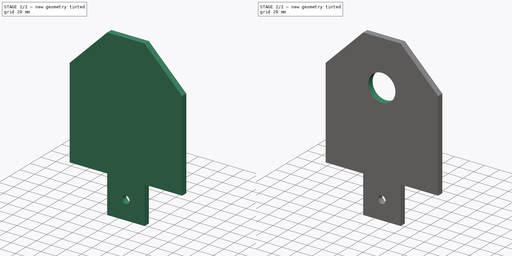
[diagram: build sequence overview — one tinted view per stage of 2, left to right]
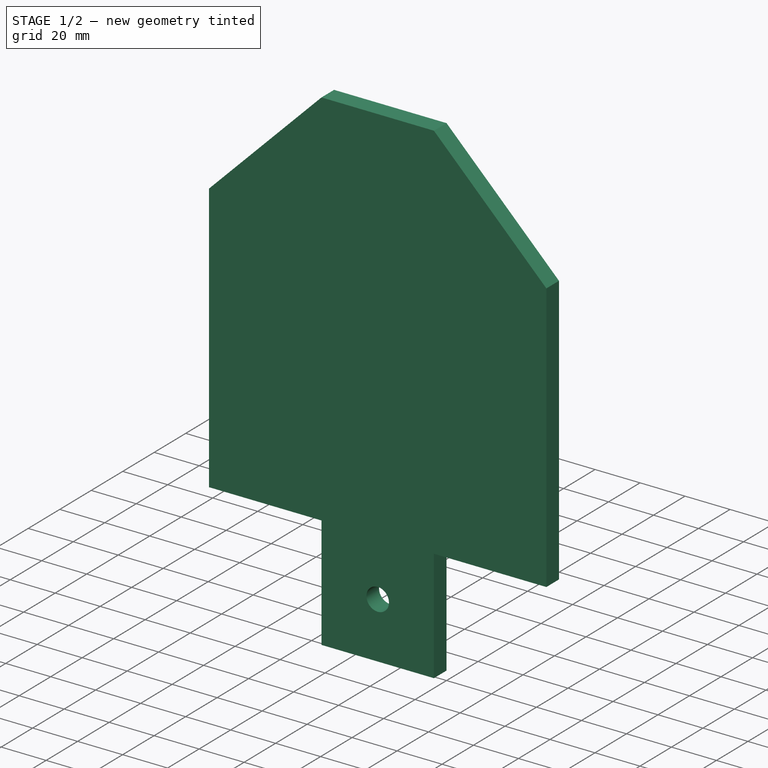
[diagram: stage 1 of 2 — iso view after this stage's code; geometry added in this stage tinted green]
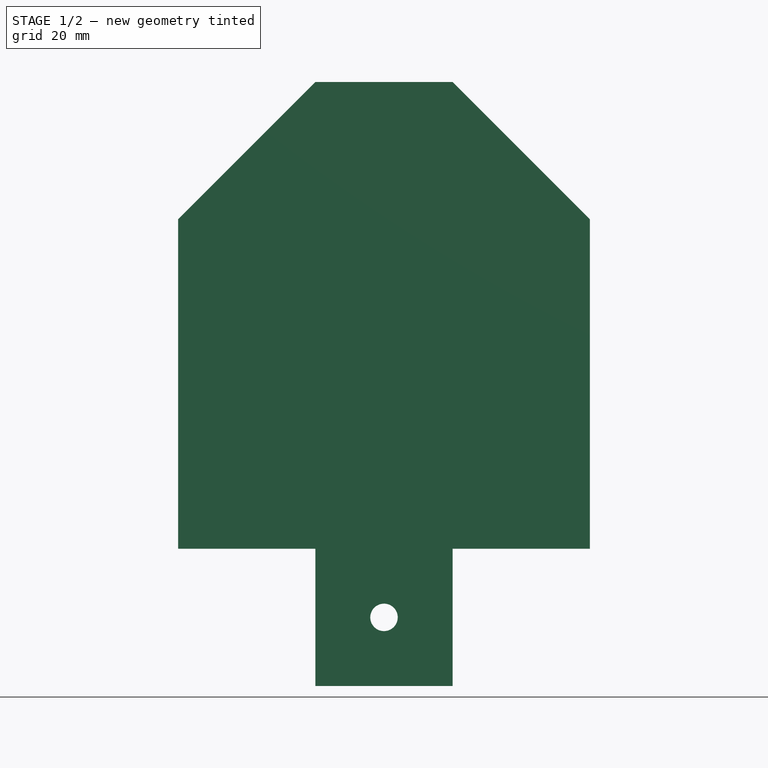
[diagram: stage 1 of 2 — front view after this stage's code; geometry added in this stage tinted green]
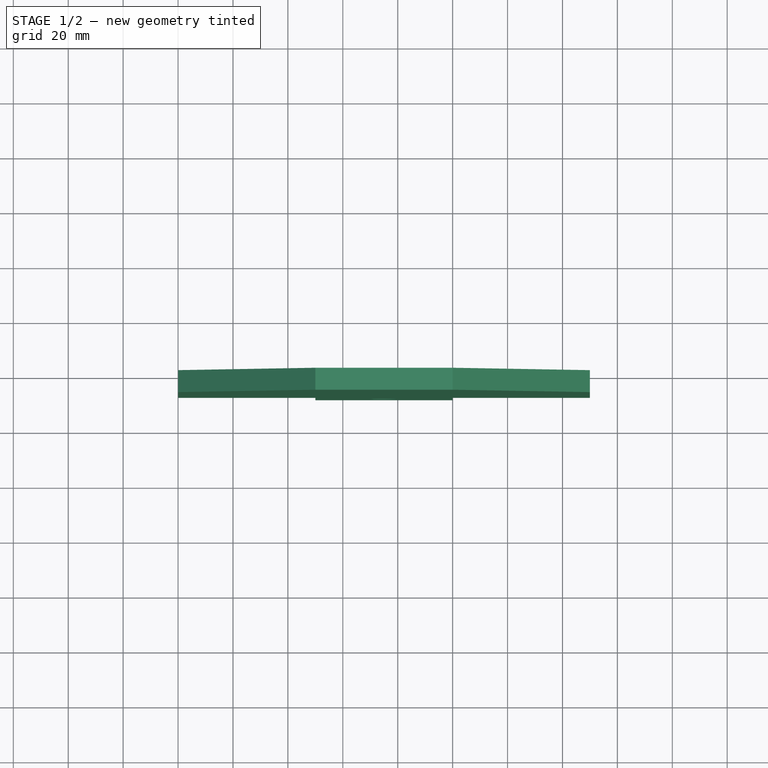
[diagram: stage 1 of 2 — top view after this stage's code; geometry added in this stage tinted green]
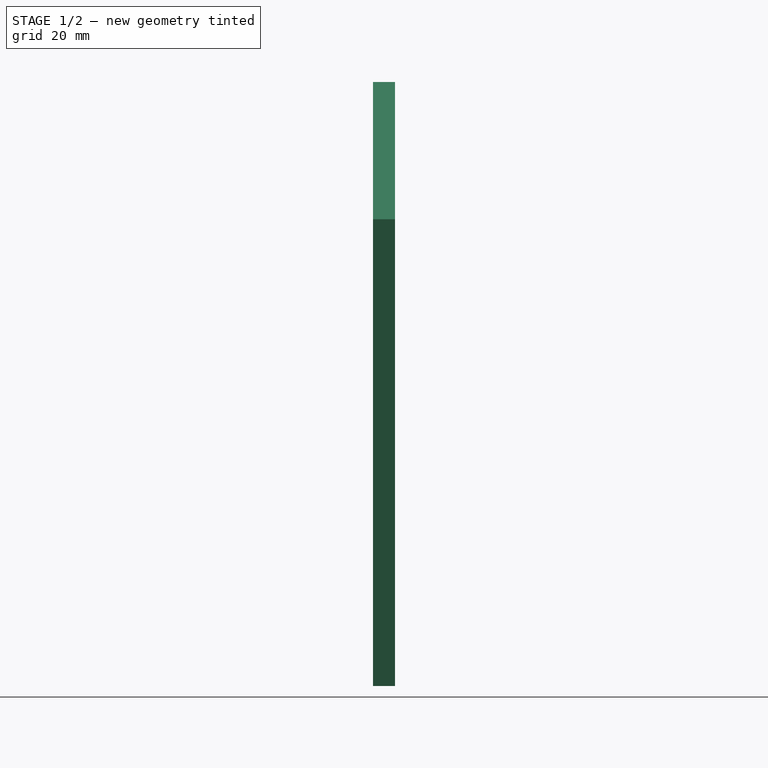
[diagram: stage 1 of 2 — right view after this stage's code; geometry added in this stage tinted green]
FCSTD DOCUMENT  (FreeCAD 0.21R33771 (Git))
Label: FlangiaSupportoMandrino
License: All rights reserved
LicenseURL: http://en.wikipedia.org/wiki/All_rights_reserved
objects: Sketcher::SketchObject×2, PartDesign::Pad×1, PartDesign::CoordinateSystem×1, PartDesign::Pocket×1, PartDesign::Body×1
note: 8 computed .brp shape members not serialized (recipe doc carries the construction recipe); baked Part::Feature solids carry a one-line shape summary decoded from their .brp

FEATURE [Sketcher::SketchObject] Sketch
  FullyConstrained = false
  MapMode = 5
  Placement = pos=(0,0,0) rot=(1,0,0;1.5708rad)
  Support = -> [XZ_Plane]
  sketch-geometry (13):
    g0: LineSegment StartX=0 StartY=0 StartZ=0 EndX=50 EndY=0 EndZ=0
    g1: LineSegment StartX=150 StartY=0 StartZ=0 EndX=150 EndY=120 EndZ=0
    g2: LineSegment StartX=100 StartY=170 StartZ=0 EndX=50 EndY=170 EndZ=0
    g3: LineSegment StartX=0 StartY=120 StartZ=0 EndX=0 EndY=0 EndZ=0
    g4: LineSegment StartX=50 StartY=170 StartZ=0 EndX=0 EndY=120 EndZ=0
    g5: LineSegment StartX=100 StartY=170 StartZ=0 EndX=150 EndY=120 EndZ=0
    g6: LineSegment StartX=50 StartY=0 StartZ=0 EndX=50 EndY=-50 EndZ=0
    g7: LineSegment StartX=50 StartY=-50 StartZ=0 EndX=100 EndY=-50 EndZ=0
    g8: LineSegment StartX=100 StartY=-50 StartZ=0 EndX=100 EndY=0 EndZ=0
    g9: LineSegment StartX=100 StartY=0 StartZ=0 EndX=150 EndY=0 EndZ=0
    g10: LineSegment StartX=57.3539 StartY=-25 StartZ=0 EndX=90.0763 EndY=-25 EndZ=0
    g11: LineSegment StartX=75 StartY=-16.1455 StartZ=0 EndX=75 EndY=-44.4932 EndZ=0
    g12: Circle CenterX=75 CenterY=-25 CenterZ=0 NormalX=0 NormalY=0 NormalZ=1 AngleXU=0 Radius=5
  constraints (36):
    c: Coincident(g9,g1)
    c: Coincident(g3,g0)
    c: Horizontal(g0)
    c: Horizontal(g2)
    c: Vertical(g1)
    c: Vertical(g3)
    c: Coincident(g0,g-1)
    c: DistanceX(g0,g9) = 150
    c: Coincident(g2,g5)
    c: Coincident(g1,g5)
    c: Coincident(g2,g4)
    c: Coincident(g3,g4)
    c: Angle(g-2,g4) = 2.35619
    c: Angle(g-2,g5) = 0.785398
    c: DistanceY(g1,g1) = 120
    c: Equal(g1,g3)
    c: DistanceY(g1,g2) = 50
    c: Vertical(g6)
    c: Coincident(g7,g6)
    c: Horizontal(g7)
    c: Coincident(g8,g7)
    c: Vertical(g8)
    c: Coincident(g0,g6)
    c: Coincident(g9,g8)
    c: DistanceX(g7,g7) = 50
    c: DistanceY(g8,g8) = 50
    c: Horizontal(g9)
    c: Equal(g8,g6)
    c: DistanceX(g0,g0) = 50
    c: Horizontal(g10)
    c: Vertical(g11)
    c: DistanceY(g10,g0) = 25
    c: DistanceX(g0,g11) = 75
    c: PointOnObject(g12,g11)
    c: PointOnObject(g12,g10)
    c: Radius(g12) = 5
FEATURE [PartDesign::Pad] Pad
  Direction = (0,-1,-2e-16)
  Length = 8
  Length2 = 100
  Placement = pos=(0,0,0) rot=(1,0,0;1.5708rad)
  Profile = -> Sketch
  Type = 0
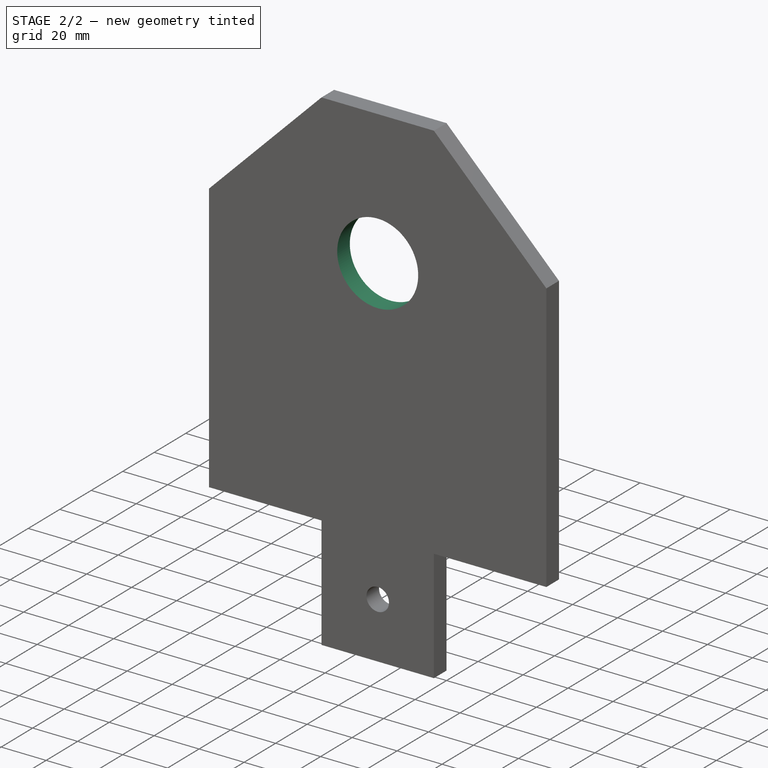
[diagram: stage 2 of 2 — iso view after this stage's code; geometry added in this stage tinted green]
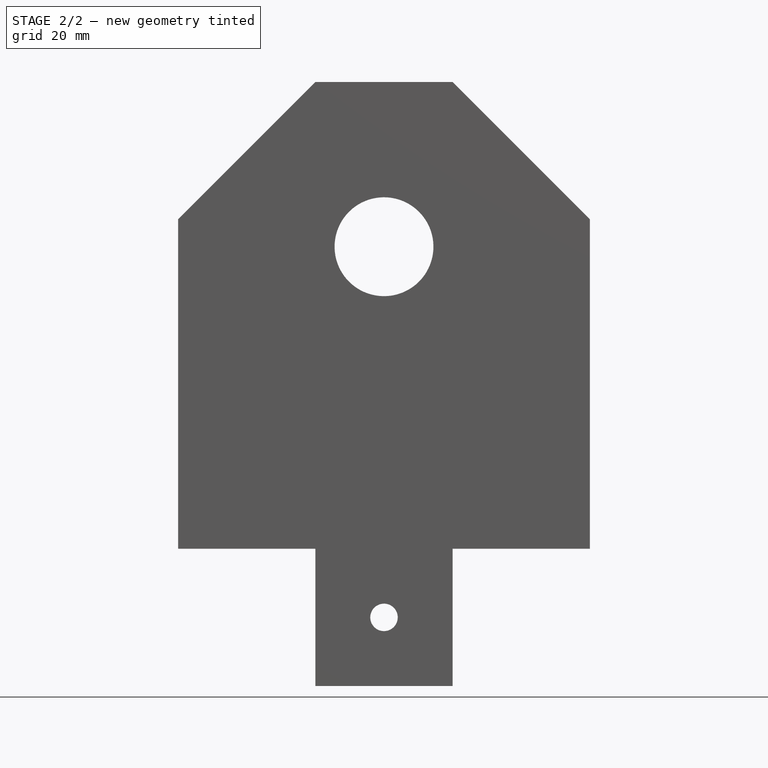
[diagram: stage 2 of 2 — front view after this stage's code; geometry added in this stage tinted green]
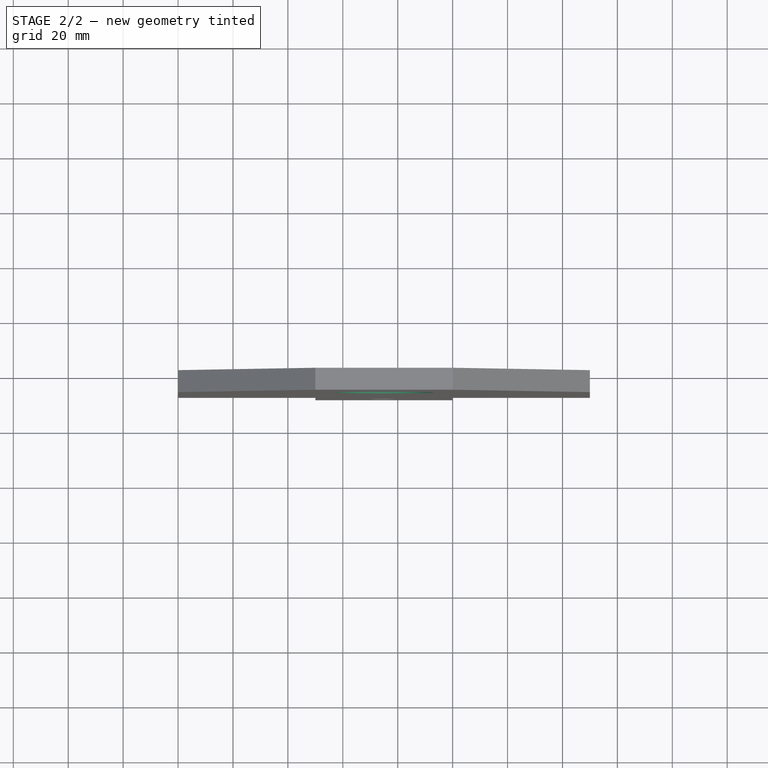
[diagram: stage 2 of 2 — top view after this stage's code; geometry added in this stage tinted green]
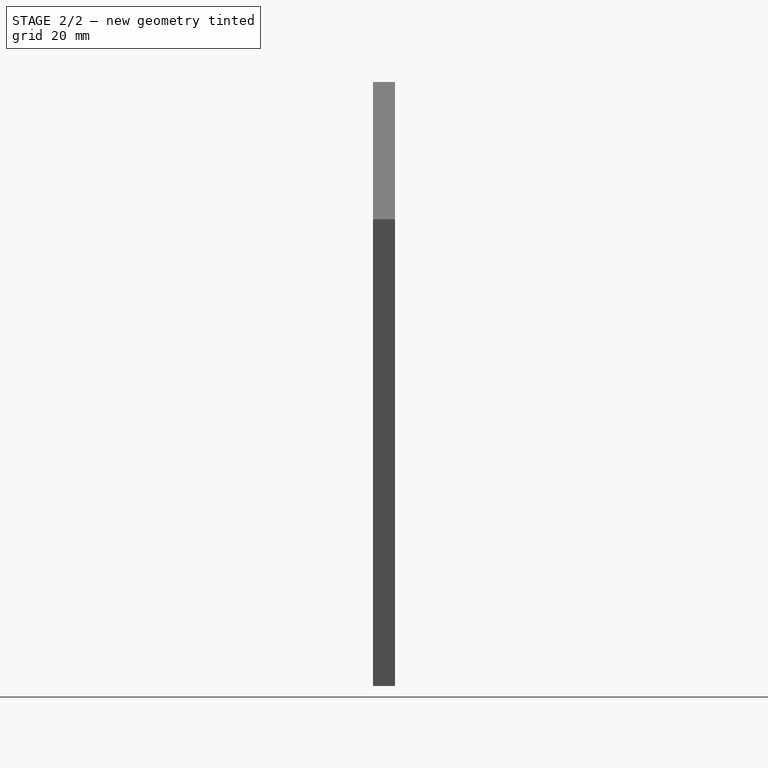
[diagram: stage 2 of 2 — right view after this stage's code; geometry added in this stage tinted green]
FEATURE [PartDesign::CoordinateSystem] LCS_  label="LCS_FlangiaSupportoMotore"
  AttacherType = Attacher::AttachEngine3D
FEATURE [Sketcher::SketchObject] Sketch001
  FullyConstrained = true
  MapMode = 5
  Placement = pos=(0,0,0) rot=(1,0,0;1.5708rad)
  Support = -> [XZ_Plane]
  sketch-geometry (1):
    g0: Circle CenterX=75 CenterY=110 CenterZ=0 NormalX=0 NormalY=0 NormalZ=1 AngleXU=0 Radius=18
  constraints (3):
    c: DistanceX(g-1,g0) = 75
    c: Radius(g0) = 18
    c: DistanceY(g-1,g0) = 110
FEATURE [PartDesign::Pocket] Pocket
  BaseFeature = -> Pad
  Direction = (0,1,2e-16)
  Length = 5
  Length2 = 5
  Placement = pos=(0,0,0) rot=(1,0,0;1.5708rad)
  Profile = -> Sketch001
  ReferenceAxis = -> Sketch001 [N_Axis]
  Reversed = true
  Type = 1
FEATURE [PartDesign::Body] Body
  Group = -> [Sketch,Pad,LCS_,Sketch001,Pocket]
  Origin = -> Origin
  Tip = -> Pocket
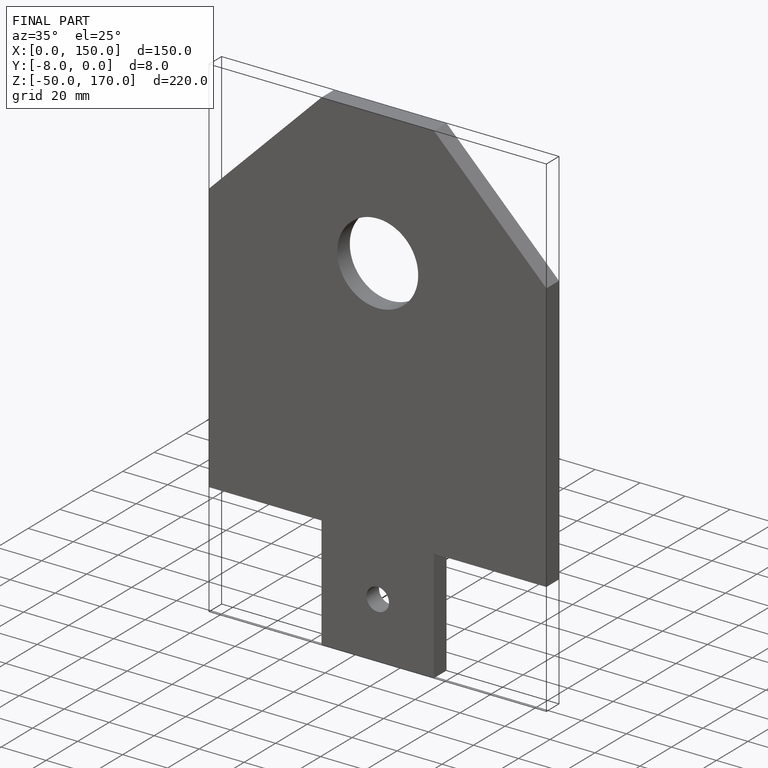
[diagram: finished part — iso view with bounding-box wireframe]
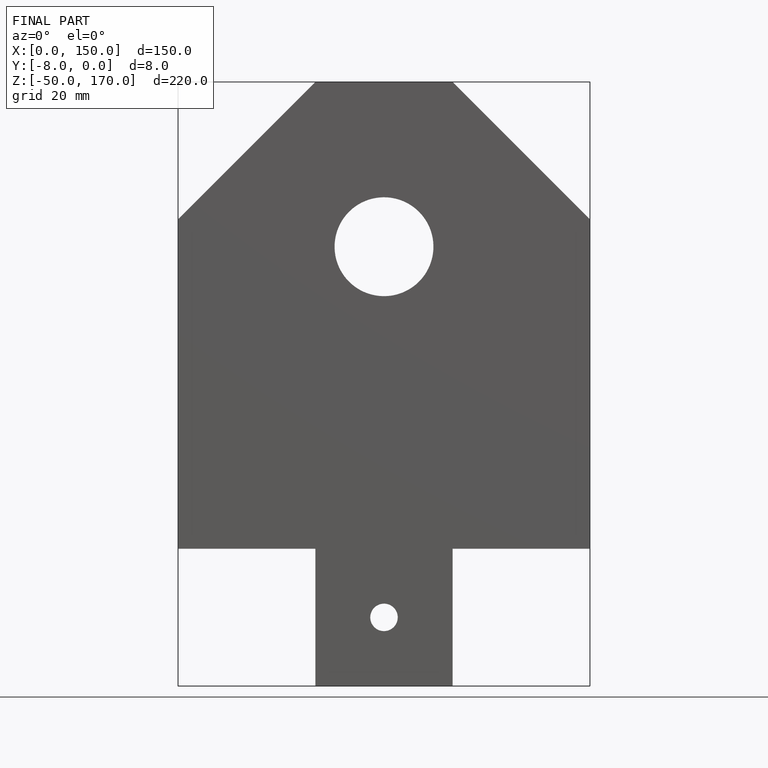
[diagram: finished part — front view with bounding-box wireframe]
